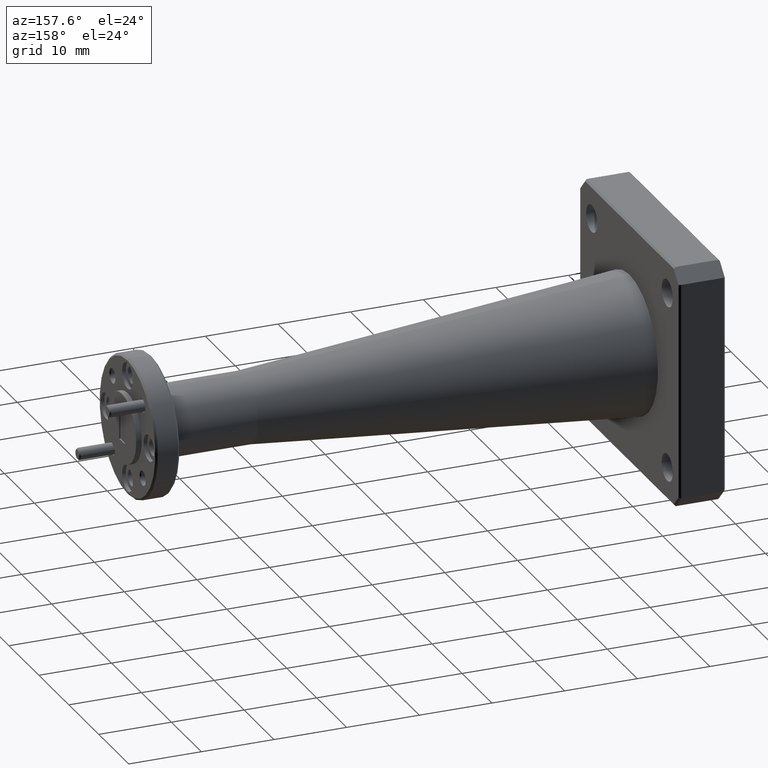
[diagram: clean part render]
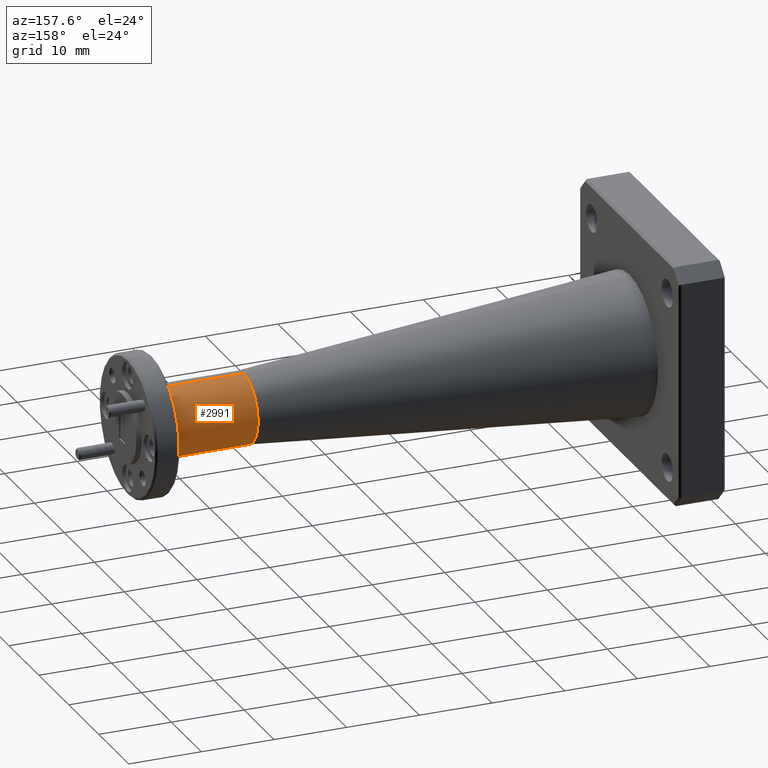
[diagram: same view with one face highlighted and labeled with its STEP entity id]
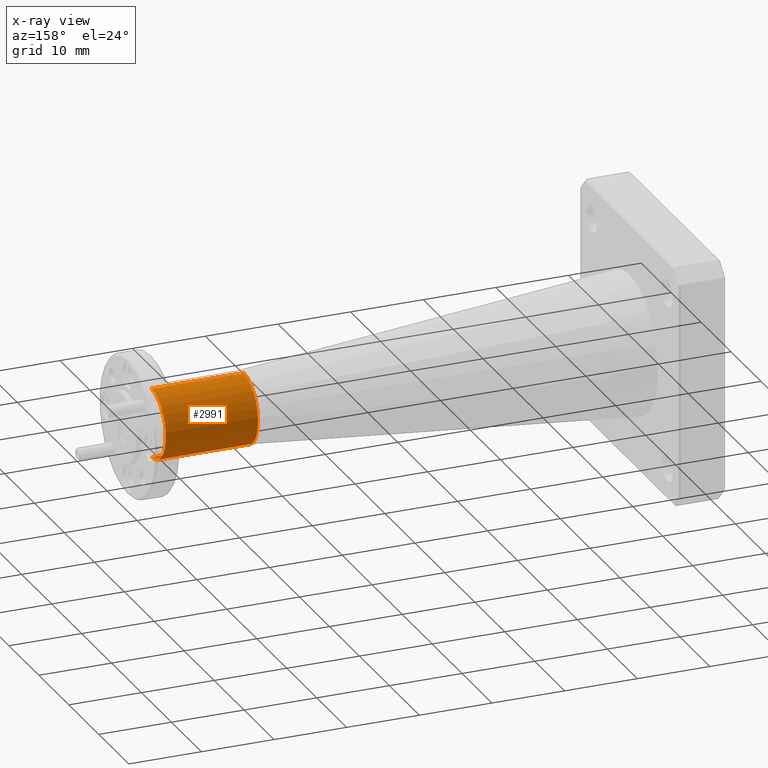
[diagram: x-ray of the same camera — body ghosted, the highlighted face saturated]
A machine part, auxiliary view. The second image highlights one B-rep face of the part: STEP entity #2991.
The next image is the same camera in x-ray: the body ghosted, the highlighted face saturated — about 0% of this face is hidden behind the body in this view.
In plain terms, the highlighted cylindrical surface (partial cylindrical patch) has radius 4.7625 mm, axis along (-1, -0, -0).
Its self-contained STEP definition (entity closure, byte-faithful):
#32 = AXIS2_PLACEMENT_3D ( 'NONE', #2934, #1468, #699 ) ;
#122 = LINE ( 'NONE', #1053, #1121 ) ;
#165 = CARTESIAN_POINT ( 'NONE',  ( 2.340000000000000300, 3.444319122601932800E-017, -0.1875000000000002800 ) ) ;
#610 = DIRECTION ( 'NONE',  ( 0.0000000000000000000, 0.0000000000000000000, 1.000000000000000000 ) ) ;
#699 = DIRECTION ( 'NONE',  ( 0.0000000000000000000, 0.0000000000000000000, 1.000000000000000000 ) ) ;
#886 = CARTESIAN_POINT ( 'NONE',  ( 2.840000000000000300, 0.0000000000000000000, 0.0000000000000000000 ) ) ;
#888 = DIRECTION ( 'NONE',  ( -1.000000000000000000, -0.0000000000000000000, -0.0000000000000000000 ) ) ;
#1053 = CARTESIAN_POINT ( 'NONE',  ( 0.0000000000000000000, 0.0000000000000000000, 0.1875000000000002800 ) ) ;
#1121 = VECTOR ( 'NONE', #2781, 39.37007874015748100 ) ;
#1169 = CARTESIAN_POINT ( 'NONE',  ( 0.0000000000000000000, 0.0000000000000000000, 0.0000000000000000000 ) ) ;
#1190 = CIRCLE ( 'NONE', #2006, 0.1875000000000002800 ) ;
#1191 = LINE ( 'NONE', #1917, #3004 ) ;
#1209 = CYLINDRICAL_SURFACE ( 'NONE', #1476, 0.1875000000000002800 ) ;
#1246 = FACE_OUTER_BOUND ( 'NONE', #1291, .T. ) ;
#1255 = VERTEX_POINT ( 'NONE', #1525 ) ;
#1291 = EDGE_LOOP ( 'NONE', ( #2122, #1338, #1724, #1727 ) ) ;
#1338 = ORIENTED_EDGE ( 'NONE', *, *, #2143, .T. ) ;
#1468 = DIRECTION ( 'NONE',  ( -1.000000000000000000, -0.0000000000000000000, -0.0000000000000000000 ) ) ;
#1476 = AXIS2_PLACEMENT_3D ( 'NONE', #1169, #2489, #1640 ) ;
#1496 = CARTESIAN_POINT ( 'NONE',  ( 2.840000000000000300, 2.296212748401290800E-017, -0.1875000000000002800 ) ) ;
#1525 = CARTESIAN_POINT ( 'NONE',  ( 2.840000000000000300, 0.0000000000000000000, 0.1875000000000002800 ) ) ;
#1618 = VERTEX_POINT ( 'NONE', #165 ) ;
#1640 = DIRECTION ( 'NONE',  ( 0.0000000000000000000, 0.0000000000000000000, 1.000000000000000000 ) ) ;
#1724 = ORIENTED_EDGE ( 'NONE', *, *, #1909, .F. ) ;
#1727 = ORIENTED_EDGE ( 'NONE', *, *, #2787, .F. ) ;
#1791 = EDGE_CURVE ( 'NONE', #1255, #2313, #1190, .T. ) ;
#1909 = EDGE_CURVE ( 'NONE', #2667, #1618, #2971, .T. ) ;
#1917 = CARTESIAN_POINT ( 'NONE',  ( 0.0000000000000000000, 2.296212748401290800E-017, -0.1875000000000002800 ) ) ;
#2006 = AXIS2_PLACEMENT_3D ( 'NONE', #886, #2652, #610 ) ;
#2122 = ORIENTED_EDGE ( 'NONE', *, *, #1791, .T. ) ;
#2143 = EDGE_CURVE ( 'NONE', #2313, #1618, #1191, .T. ) ;
#2154 = CARTESIAN_POINT ( 'NONE',  ( 2.340000000000000300, 0.0000000000000000000, 0.1875000000000002800 ) ) ;
#2313 = VERTEX_POINT ( 'NONE', #1496 ) ;
#2489 = DIRECTION ( 'NONE',  ( -1.000000000000000000, -0.0000000000000000000, -0.0000000000000000000 ) ) ;
#2652 = DIRECTION ( 'NONE',  ( -1.000000000000000000, -0.0000000000000000000, -0.0000000000000000000 ) ) ;
#2667 = VERTEX_POINT ( 'NONE', #2154 ) ;
#2781 = DIRECTION ( 'NONE',  ( -1.000000000000000000, -0.0000000000000000000, -0.0000000000000000000 ) ) ;
#2787 = EDGE_CURVE ( 'NONE', #1255, #2667, #122, .T. ) ;
#2934 = CARTESIAN_POINT ( 'NONE',  ( 2.340000000000000300, 0.0000000000000000000, 0.0000000000000000000 ) ) ;
#2971 = CIRCLE ( 'NONE', #32, 0.1875000000000002800 ) ;
#2991 = ADVANCED_FACE ( 'NONE', ( #1246 ), #1209, .T. ) ;
#3004 = VECTOR ( 'NONE', #888, 39.37007874015748100 ) ;